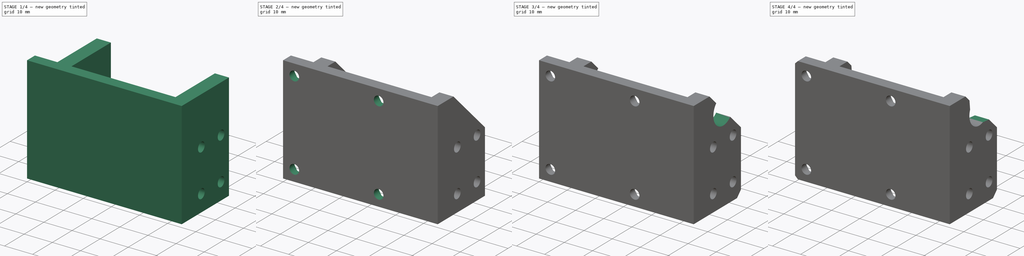
[diagram: build sequence overview — one tinted view per stage of 4, left to right]
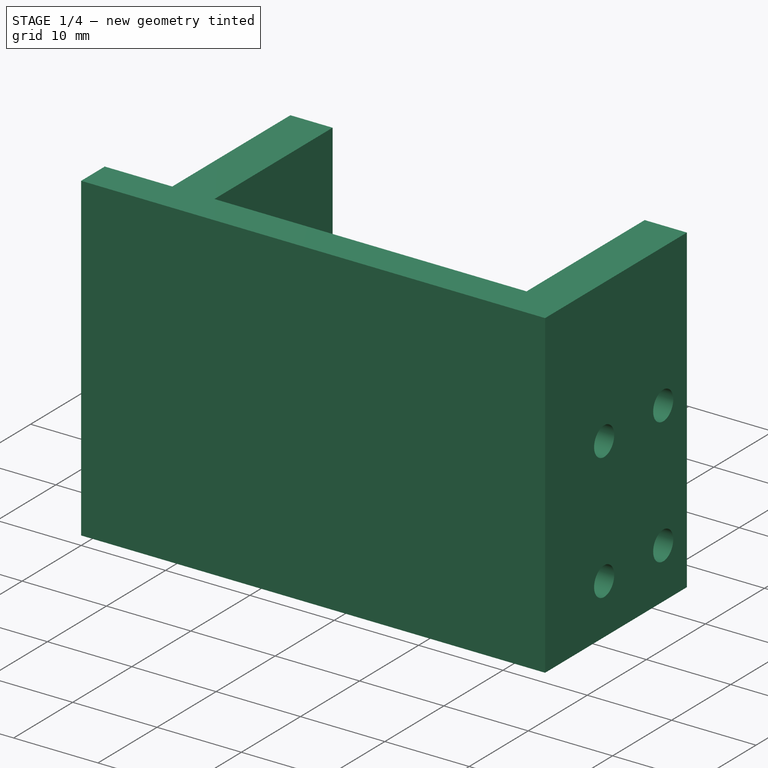
[diagram: stage 1 of 4 — iso view after this stage's code; geometry added in this stage tinted green]
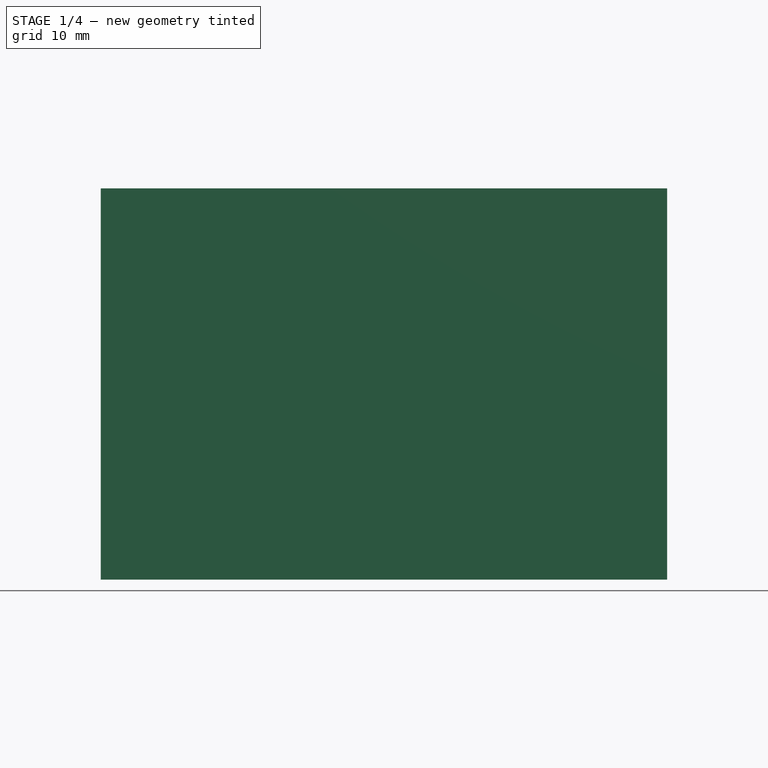
[diagram: stage 1 of 4 — front view after this stage's code; geometry added in this stage tinted green]
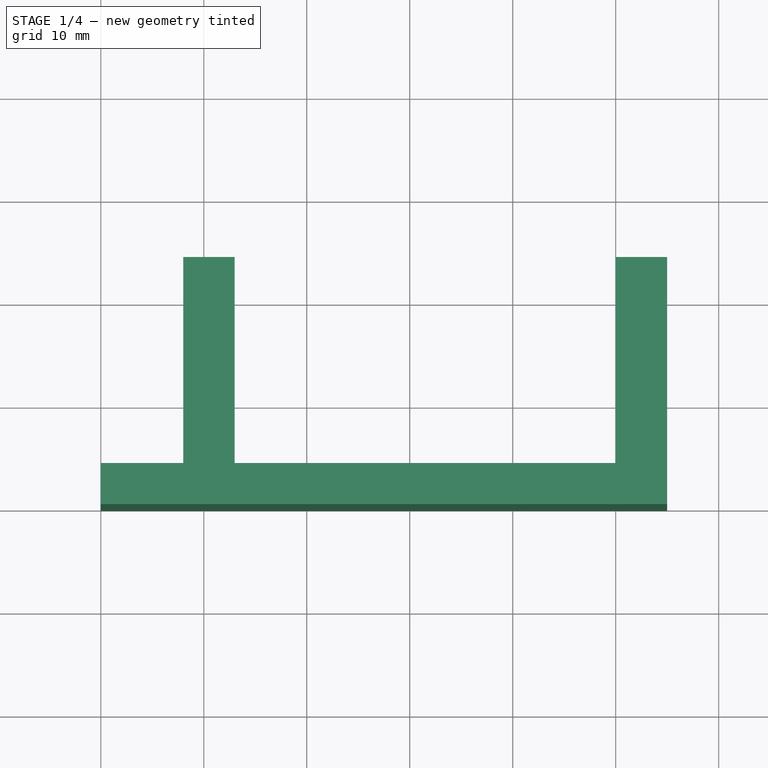
[diagram: stage 1 of 4 — top view after this stage's code; geometry added in this stage tinted green]
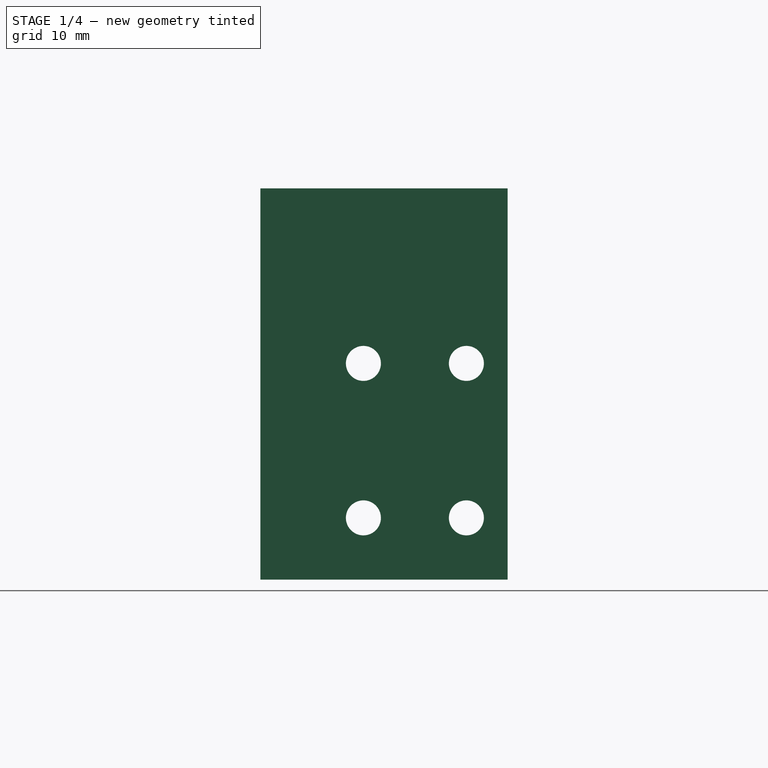
[diagram: stage 1 of 4 — right view after this stage's code; geometry added in this stage tinted green]
FCSTD DOCUMENT  (FreeCAD 0.19R24291 (Git))
Label: FDM-0042_valve-mount
License: All rights reserved
LicenseURL: http://en.wikipedia.org/wiki/All_rights_reserved
objects: Sketcher::SketchObject×5, PartDesign::Chamfer×4, PartDesign::Pocket×3, PartDesign::Plane×3, PartDesign::Hole×2, PartDesign::Pad×1, Part::Part2DObjectPython×1, PartDesign::Body×1
note: 30 computed .brp shape members not serialized (recipe doc carries the construction recipe); baked Part::Feature solids carry a one-line shape summary decoded from their .brp

FEATURE [Sketcher::SketchObject] Sketch  label="Base"
  FullyConstrained = true
  MapMode = 5
  Support = -> [XY_Plane]
  sketch-geometry (10):
    g0: LineSegment StartX=8 StartY=24 StartZ=0 EndX=13 EndY=24 EndZ=0
    g1: LineSegment StartX=13 StartY=24 StartZ=0 EndX=13 EndY=4 EndZ=0
    g2: LineSegment StartX=13 StartY=4 StartZ=0 EndX=50 EndY=4 EndZ=0
    g3: LineSegment StartX=50 StartY=4 StartZ=0 EndX=50 EndY=24 EndZ=0
    g4: LineSegment StartX=50 StartY=24 StartZ=0 EndX=55 EndY=24 EndZ=0
    g5: LineSegment StartX=55 StartY=24 StartZ=0 EndX=55 EndY=0 EndZ=0
    g6: LineSegment StartX=8 StartY=24 StartZ=0 EndX=8 EndY=4 EndZ=0
    g7: LineSegment StartX=8 StartY=4 StartZ=0 EndX=0 EndY=4 EndZ=0
    g8: LineSegment StartX=0 StartY=4 StartZ=0 EndX=0 EndY=0 EndZ=0
    g9: LineSegment StartX=0 StartY=0 StartZ=0 EndX=55 EndY=0 EndZ=0
  constraints (29):
    c: Vertical(g8)
    c: Coincident(g8,g9)
    c: Coincident(g8,g-1)
    c: Coincident(g7,g8)
    c: Coincident(g7,g6)
    c: Coincident(g6,g0)
    c: Coincident(g0,g1)
    c: Coincident(g2,g3)
    c: Coincident(g3,g4)
    c: Horizontal(g9)
    c: Coincident(g5,g9)
    c: Horizontal(g2)
    c: Horizontal(g7)
    c: Horizontal(g0)
    c: Horizontal(g4)
    c: Coincident(g5,g4)
    c: Vertical(g5)
    c: Vertical(g3)
    c: Vertical(g6)
    c: Vertical(g1)
    c: DistanceY(g8,g8) = 4
    c: Coincident(g1,g2)
    c: Horizontal(g1,g6)
    c: Equal(g0,g4)
    c: DistanceX(g4,g4) = 5
    c: DistanceX(g2,g2) = 37
    c: DistanceX(g9,g9) = 55
    c: DistanceY(g1,g1) = 20
    c: Horizontal(g0,g3)
FEATURE [PartDesign::Pad] Pad
  Direction = (1,1,1)
  Length = 38
  Length2 = 100
  Profile = -> Sketch
  Type = 0
FEATURE [Sketcher::SketchObject] Sketch001
  FullyConstrained = true
  MapMode = 5
  Placement = pos=(0,0,0) rot=(0.57735,0.57735,0.57735;2.0944rad)
  Support = -> [YZ_Plane]
  sketch-geometry (4):
    g0: Circle CenterX=10 CenterY=21 CenterZ=0 NormalX=0 NormalY=0 NormalZ=1 AngleXU=0 Radius=1.75
    g1: Circle CenterX=20 CenterY=6 CenterZ=0 NormalX=0 NormalY=0 NormalZ=1 AngleXU=0 Radius=1.75
    g2: Circle CenterX=20 CenterY=21 CenterZ=0 NormalX=0 NormalY=0 NormalZ=1 AngleXU=0 Radius=1.75
    g3: Circle CenterX=10 CenterY=6 CenterZ=0 NormalX=0 NormalY=0 NormalZ=1 AngleXU=0 Radius=1.75
  constraints (12):
    c: Equal(g1,g0)
    c: Diameter(g1) = 3.5
    c: DistanceX(g0,g1) = 10
    c: DistanceY(g1,g0) = 15
    c: DistanceY(g-1,g1) = 6
    c: DistanceX(g-1,g0) = 10
    c: Equal(g3,g2)
    c: Equal(g2,g0)
    c: Horizontal(g0,g2)
    c: Vertical(g2,g1)
    c: Vertical(g3,g0)
    c: Horizontal(g3,g1)
FEATURE [PartDesign::Hole] Hole
  BaseFeature = -> Pad
  Depth = 25
  DepthType = 1
  Diameter = 3.4
  DrillForDepth = false
  DrillPoint = 1
  DrillPointAngle = 118
  HoleCutCountersinkAngle = 90
  HoleCutCustomValues = false
  HoleCutDepth = 0
  HoleCutDiameter = 6.1
  HoleCutType = 0
  ModelActualThread = false
  Profile = -> Sketch001
  Reversed = true
  Tapered = false
  TaperedAngle = 90
  ThreadAngle = 0
  ThreadClass = 0
  ThreadCutOffInner = 0
  ThreadCutOffOuter = 0
  ThreadDirection = 0
  ThreadFit = 0
  ThreadPitch = 0
  ThreadSize = 9
  ThreadType = 1
  Threaded = false
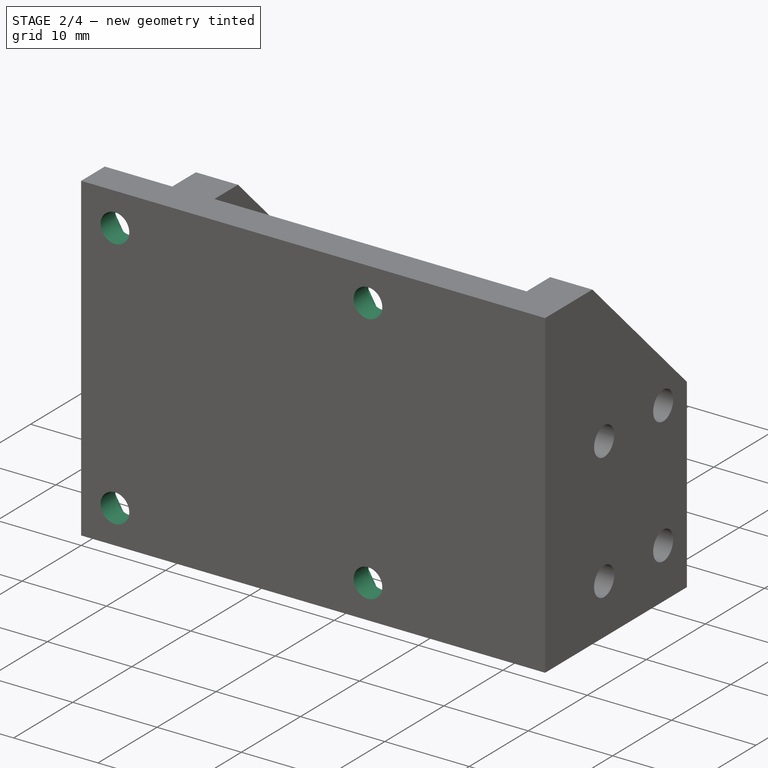
[diagram: stage 2 of 4 — iso view after this stage's code; geometry added in this stage tinted green]
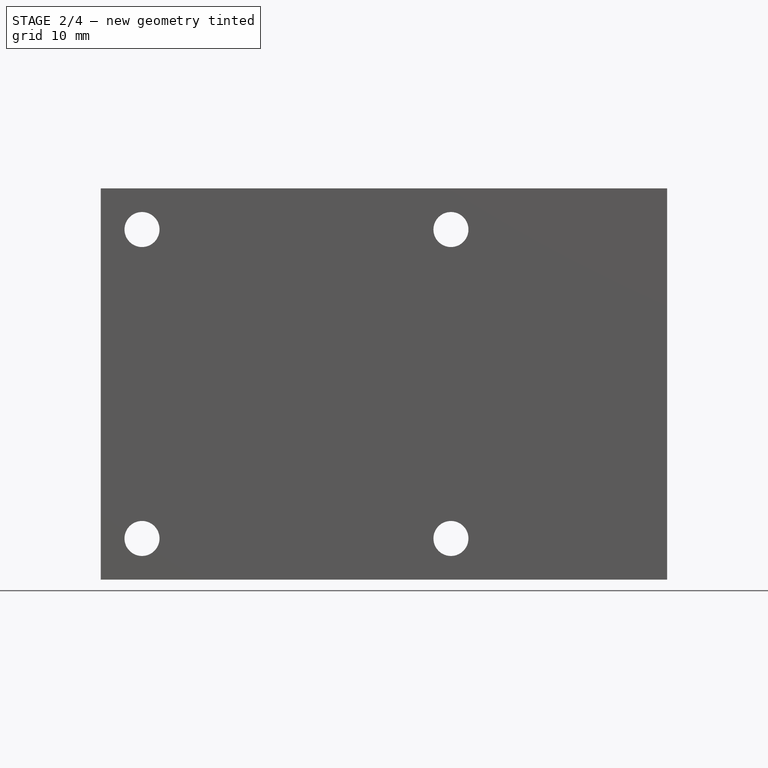
[diagram: stage 2 of 4 — front view after this stage's code; geometry added in this stage tinted green]
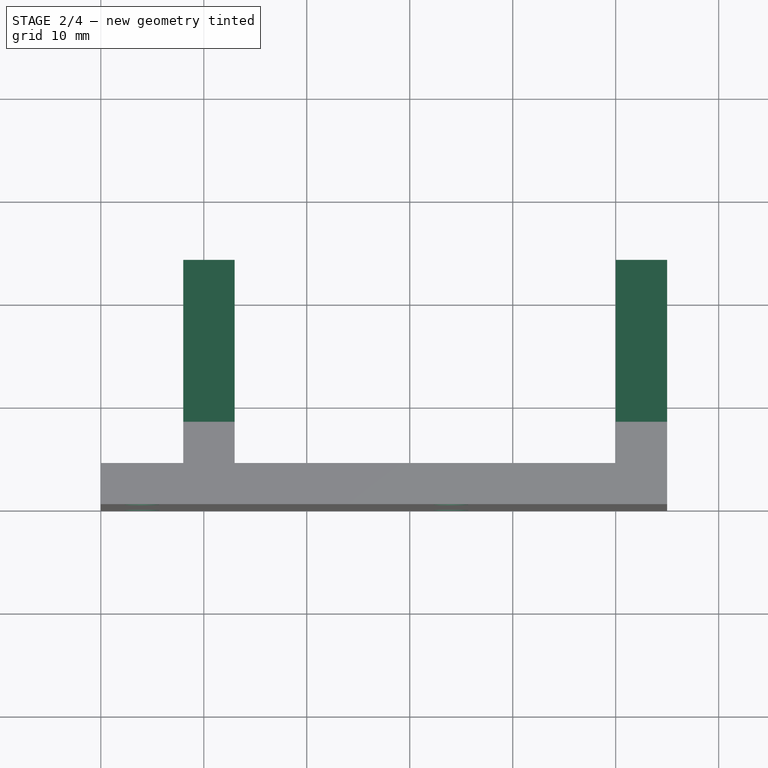
[diagram: stage 2 of 4 — top view after this stage's code; geometry added in this stage tinted green]
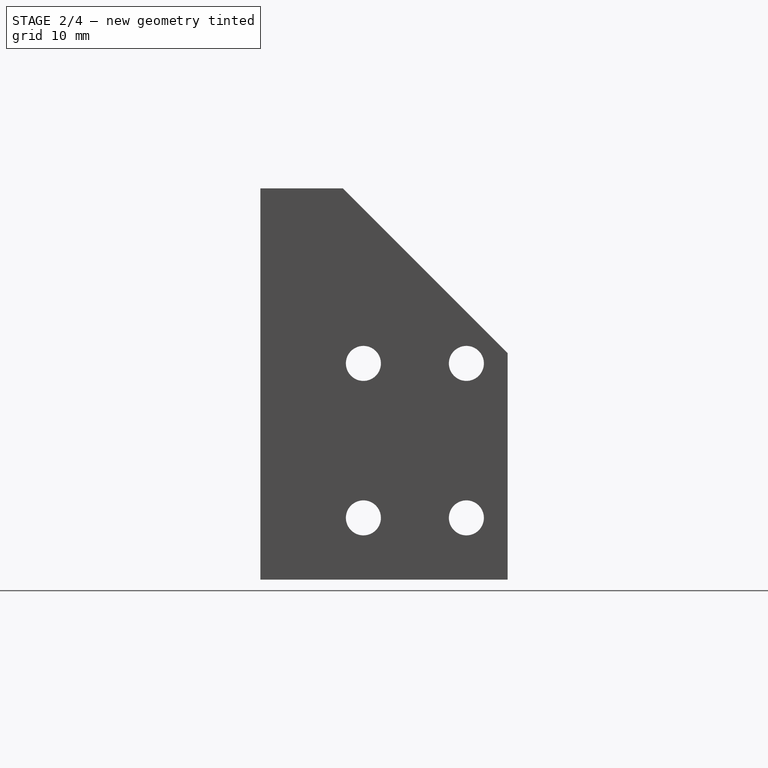
[diagram: stage 2 of 4 — right view after this stage's code; geometry added in this stage tinted green]
FEATURE [Sketcher::SketchObject] Sketch002  label="BaseHoles"
  FullyConstrained = false
  MapMode = 5
  Placement = pos=(0,0,0) rot=(1,0,0;1.5708rad)
  Support = -> [XZ_Plane]
  sketch-geometry (4):
    g0: Circle CenterX=4 CenterY=34 CenterZ=0 NormalX=0 NormalY=0 NormalZ=1 AngleXU=0 Radius=1.75
    g1: Circle CenterX=34 CenterY=4 CenterZ=0 NormalX=0 NormalY=0 NormalZ=1 AngleXU=0 Radius=1.75
    g2: Circle CenterX=34 CenterY=34 CenterZ=0 NormalX=0 NormalY=0 NormalZ=1 AngleXU=0 Radius=1.75
    g3: Circle CenterX=4 CenterY=4 CenterZ=0 NormalX=0 NormalY=0 NormalZ=1 AngleXU=0 Radius=1.75
  constraints (11):
    c: Diameter(g3) = 3.5
    c: Equal(g3,g0)
    c: Equal(g0,g2)
    c: Equal(g2,g1)
    c: DistanceX(g-1,g0) = 4
    c: DistanceY(g-1,g3) = 4
    c: Vertical(g3,g0)
    c: DistanceY(g3,g0) = 30
    c: DistanceX(g0,g2) = 30
    c: Vertical(g1,g2)
    c: Horizontal(g1,g3)
FEATURE [PartDesign::Hole] Hole001
  BaseFeature = -> Hole
  Depth = 25
  DepthType = 0
  Diameter = 3.4
  DrillForDepth = false
  DrillPoint = 1
  DrillPointAngle = 118
  HoleCutCountersinkAngle = 90
  HoleCutCustomValues = false
  HoleCutDepth = 0
  HoleCutDiameter = 6.1
  HoleCutType = 0
  ModelActualThread = false
  Profile = -> Sketch002
  Tapered = false
  TaperedAngle = 90
  ThreadAngle = 0
  ThreadClass = 0
  ThreadCutOffInner = 0
  ThreadCutOffOuter = 0
  ThreadDirection = 0
  ThreadFit = 0
  ThreadPitch = 0
  ThreadSize = 9
  ThreadType = 1
  Threaded = false
FEATURE [Sketcher::SketchObject] Sketch003
  AttachmentOffset = pos=(0,0,-5) rot=(0,0,1;0rad)
  FullyConstrained = true
  MapMode = 5
  Placement = pos=(0,5,1.1e-15) rot=(1,0,0;1.5708rad)
  Support = -> [XZ_Plane]
  sketch-geometry (28):
    g0: LineSegment StartX=7.17543 StartY=34 StartZ=0 EndX=5.58771 EndY=36.75 EndZ=0
    g1: LineSegment StartX=5.58771 StartY=36.75 StartZ=0 EndX=2.41229 EndY=36.75 EndZ=0
    g2: LineSegment StartX=2.41229 StartY=36.75 StartZ=0 EndX=0.824574 EndY=34 EndZ=0
    g3: LineSegment StartX=0.824574 StartY=34 StartZ=0 EndX=2.41229 EndY=31.25 EndZ=0
    g4: LineSegment StartX=2.41229 StartY=31.25 StartZ=0 EndX=5.58771 EndY=31.25 EndZ=0
    g5: LineSegment StartX=5.58771 StartY=31.25 StartZ=0 EndX=7.17543 EndY=34 EndZ=0
    g6: Circle CenterX=4 CenterY=34 CenterZ=0 NormalX=0 NormalY=0 NormalZ=1 AngleXU=0 Radius=3.17543
    g7: LineSegment StartX=35.5877 StartY=31.25 StartZ=0 EndX=37.1754 EndY=34 EndZ=0
    g8: LineSegment StartX=37.1754 StartY=34 StartZ=0 EndX=35.5877 EndY=36.75 EndZ=0
    g9: LineSegment StartX=35.5877 StartY=36.75 StartZ=0 EndX=32.4123 EndY=36.75 EndZ=0
    g10: LineSegment StartX=32.4123 StartY=36.75 StartZ=0 EndX=30.8246 EndY=34 EndZ=0
    g11: LineSegment StartX=30.8246 StartY=34 StartZ=0 EndX=32.4123 EndY=31.25 EndZ=0
    g12: LineSegment StartX=32.4123 StartY=31.25 StartZ=0 EndX=35.5877 EndY=31.25 EndZ=0
    g13: Circle CenterX=34 CenterY=34 CenterZ=0 NormalX=0 NormalY=0 NormalZ=1 AngleXU=0 Radius=3.17543
    g14: LineSegment StartX=35.5877 StartY=6.75 StartZ=0 EndX=32.4123 EndY=6.75 EndZ=0
    g15: LineSegment StartX=32.4123 StartY=6.75 StartZ=0 EndX=30.8246 EndY=4 EndZ=0
    g16: LineSegment StartX=30.8246 StartY=4 StartZ=0 EndX=32.4123 EndY=1.25 EndZ=0
    g17: LineSegment StartX=32.4123 StartY=1.25 StartZ=0 EndX=35.5877 EndY=1.25 EndZ=0
    g18: LineSegment StartX=35.5877 StartY=1.25 StartZ=0 EndX=37.1754 EndY=4 EndZ=0
    g19: LineSegment StartX=37.1754 StartY=4 StartZ=0 EndX=35.5877 EndY=6.75 EndZ=0
    g20: Circle CenterX=34 CenterY=4 CenterZ=0 NormalX=0 NormalY=0 NormalZ=1 AngleXU=0 Radius=3.17543
    g21: LineSegment StartX=7.17543 StartY=4 StartZ=0 EndX=5.58771 EndY=6.75 EndZ=0
    g22: LineSegment StartX=5.58771 StartY=6.75 StartZ=0 EndX=2.41229 EndY=6.75 EndZ=0
    g23: LineSegment StartX=2.41229 StartY=6.75 StartZ=0 EndX=0.824574 EndY=4 EndZ=0
    g24: LineSegment StartX=0.824574 StartY=4 StartZ=0 EndX=2.41229 EndY=1.25 EndZ=0
    g25: LineSegment StartX=2.41229 StartY=1.25 StartZ=0 EndX=5.58771 EndY=1.25 EndZ=0
    g26: LineSegment StartX=5.58771 StartY=1.25 StartZ=0 EndX=7.17543 EndY=4 EndZ=0
    g27: Circle CenterX=4 CenterY=4 CenterZ=0 NormalX=0 NormalY=0 NormalZ=1 AngleXU=0 Radius=3.17543
  constraints (68):
    c: Coincident(g0,g1)
    c: Coincident(g1,g2)
    c: Coincident(g2,g3)
    c: Coincident(g3,g4)
    c: Coincident(g4,g5)
    c: Coincident(g5,g0)
    c: Equal(g0, g1-g5) x5
    c: PointOnObject(g0,g6)
    c: PointOnObject(g1,g6)
    c: PointOnObject(g2,g6)
    c: PointOnObject(g3,g6)
    c: PointOnObject(g4,g6)
    c: PointOnObject(g5,g6)
    c: Coincident(g7,g8)
    c: Coincident(g8,g9)
    c: Coincident(g9,g10)
    c: Coincident(g10,g11)
    c: Coincident(g11,g12)
    c: Coincident(g12,g7)
    c: Equal(g7, g8-g12) x5
    c: PointOnObject(g7,g13)
    c: PointOnObject(g8,g13)
    c: PointOnObject(g9,g13)
    c: PointOnObject(g10,g13)
    c: PointOnObject(g11,g13)
    c: PointOnObject(g12,g13)
    c: Coincident(g14,g15)
    c: Coincident(g15,g16)
    c: Coincident(g16,g17)
    c: Coincident(g17,g18)
    c: Coincident(g18,g19)
    c: Coincident(g19,g14)
    c: Equal(g14, g15-g19) x5
    c: PointOnObject(g14,g20)
    c: PointOnObject(g15,g20)
    c: PointOnObject(g16,g20)
    c: PointOnObject(g17,g20)
    c: PointOnObject(g18,g20)
    c: PointOnObject(g19,g20)
    c: Coincident(g21,g22)
    c: Coincident(g22,g23)
    c: Coincident(g23,g24)
    c: Coincident(g24,g25)
    c: Coincident(g25,g26)
    c: Coincident(g26,g21)
    c: Equal(g21, g22-g26) x5
    c: PointOnObject(g21,g27)
    c: PointOnObject(g22,g27)
    c: PointOnObject(g23,g27)
    c: PointOnObject(g24,g27)
    c: PointOnObject(g25,g27)
    c: PointOnObject(g26,g27)
    c: Distance(g2,g0) = 5.5
    c: Horizontal(g1)
    c: Horizontal(g9)
    c: Horizontal(g22)
    c: Horizontal(g14)
    c: DistanceX(g6,g13) = 30
    c: Vertical(g6,g27)
    c: Vertical(g13,g20)
    c: Horizontal(g27,g20)
    c: Equal(g20,g27)
    c: Equal(g27,g6)
    c: Equal(g6,g13)
    c: DistanceY(g27,g6) = 30
    c: Horizontal(g13,g6)
    c: DistanceY(g-1,g27) = 4
    c: DistanceX(g-1,g27) = 4
FEATURE [PartDesign::Pocket] Pocket
  BaseFeature = -> Hole001
  Length = 2.5
  Length2 = 100
  Profile = -> Sketch003
  Reversed = true
  Type = 0
FEATURE [PartDesign::Chamfer] Chamfer
  Angle = 45
  Base = -> Pocket [Edge4,Edge28]
  BaseFeature = -> Pocket
  ChamferType = 0
  FlipDirection = false
  Size = 16
  Size2 = 1
  SupportTransform = false
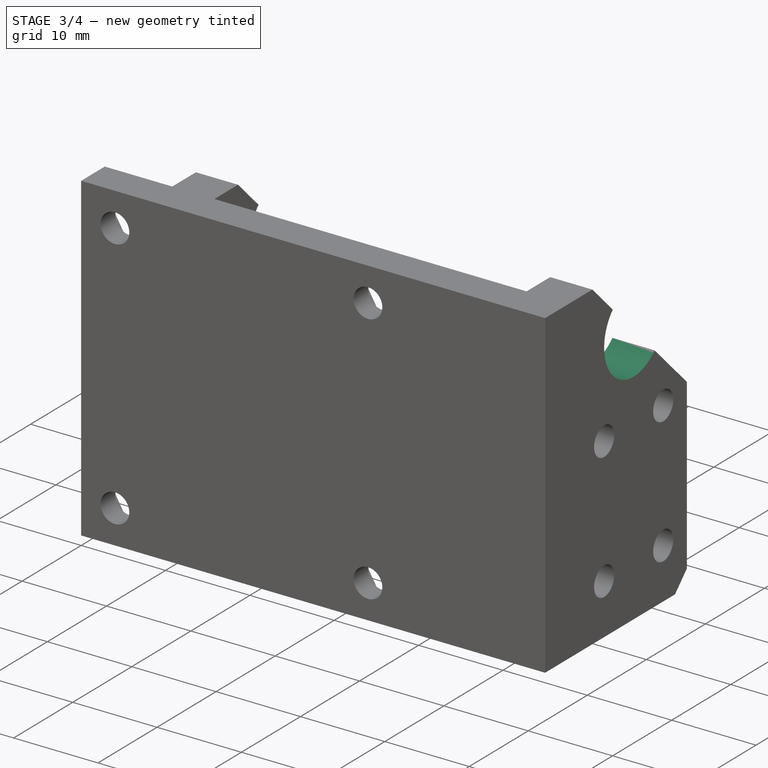
[diagram: stage 3 of 4 — iso view after this stage's code; geometry added in this stage tinted green]
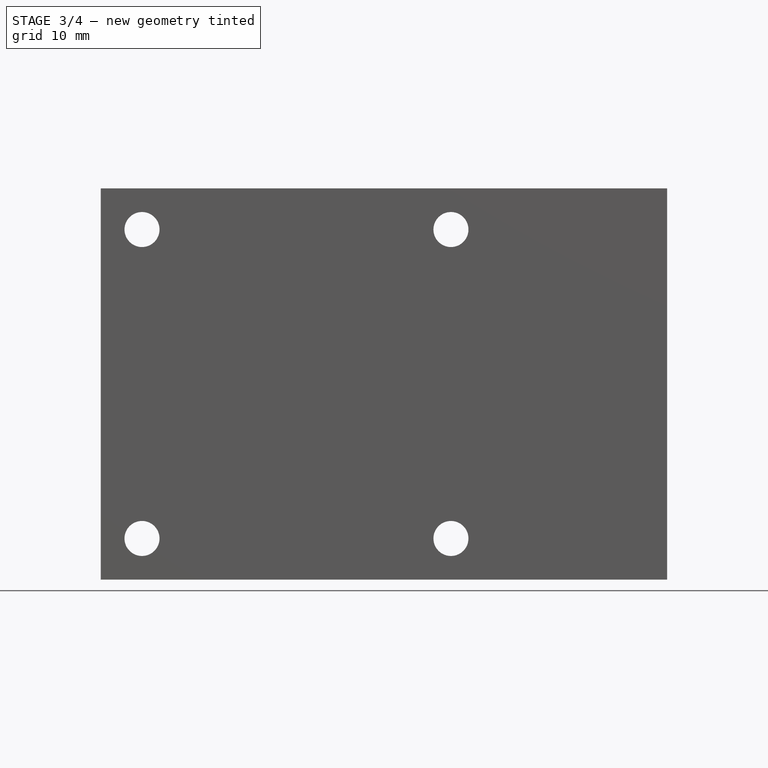
[diagram: stage 3 of 4 — front view after this stage's code; geometry added in this stage tinted green]
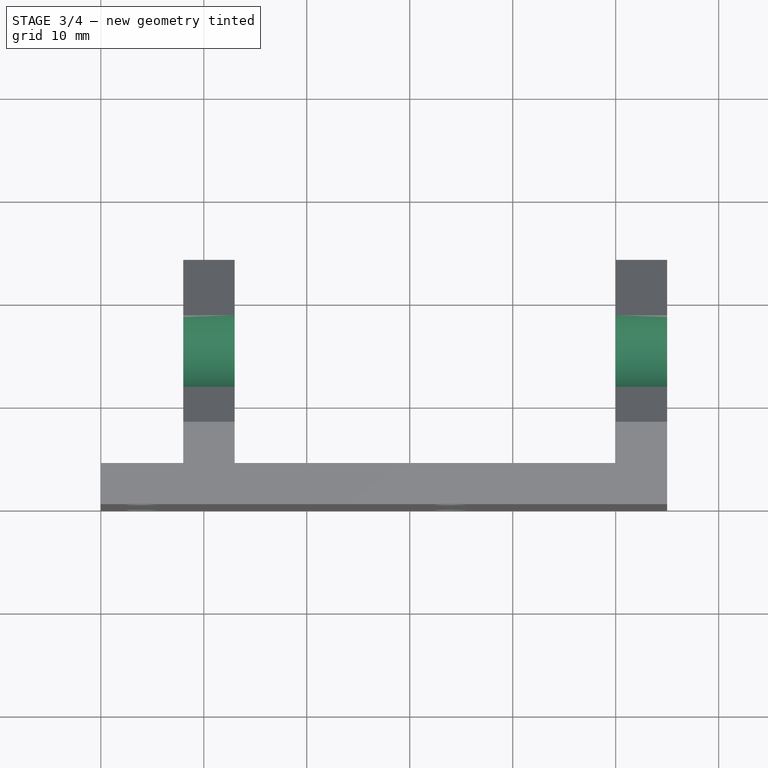
[diagram: stage 3 of 4 — top view after this stage's code; geometry added in this stage tinted green]
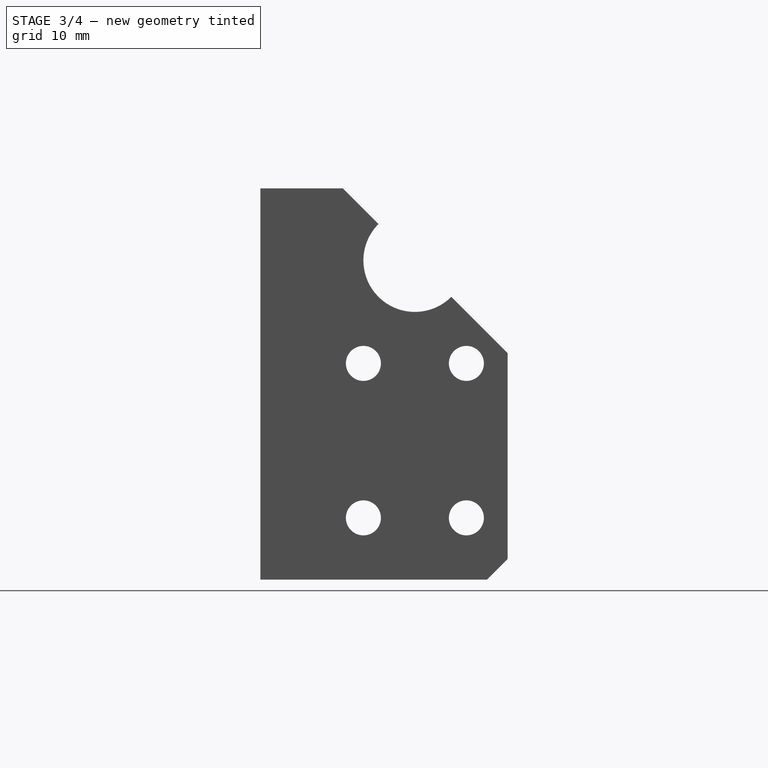
[diagram: stage 3 of 4 — right view after this stage's code; geometry added in this stage tinted green]
FEATURE [PartDesign::Chamfer] Chamfer002
  Angle = 45
  Base = -> Chamfer [Edge18,Edge3]
  BaseFeature = -> Chamfer
  ChamferType = 0
  FlipDirection = false
  Size = 2
  Size2 = 1
  SupportTransform = false
FEATURE [PartDesign::Plane] DatumPlane001
  Length = 94.1986
  MapMode = 5
  Placement = pos=(0,4,0) rot=(0,0.707107,0.707107;3.14159rad)
  ResizeMode = 0
  Support = -> [Chamfer002]
  Width = 77.1986
FEATURE [Part::Part2DObjectPython] ShapeString  label="PN"  # Draft 2D object (typed FeaturePython)
  AttachmentOffset = pos=(-24,2,0) rot=(0,0,1;1.5708rad)
  FontFile = ../../lib/fonts/RobotoMono-VariableFont_weight.ttf
  MapMode = 5
  Placement = pos=(24,4,2) rot=(0.57735,0.57735,0.57735;4.18879rad)
  Size = 4.5
  String = FDM-0042-01
  Support = -> [DatumPlane001]
  Tracking = 0
FEATURE [PartDesign::Pocket] Pocket001  label="PartNumber"
  BaseFeature = -> Chamfer002
  Length = 0.8
  Length2 = 100
  Profile = -> ShapeString
  Type = 0
FEATURE [PartDesign::Plane] DatumPlane002
  Length = 61.225
  MapMode = 5
  Placement = pos=(55,0,0) rot=(0.57735,0.57735,0.57735;2.0944rad)
  ResizeMode = 0
  Support = -> [Pocket001]
  Width = 74.225
FEATURE [Sketcher::SketchObject] Sketch004
  FullyConstrained = true
  MapMode = 5
  Placement = pos=(55,0,0) rot=(0.57735,0.57735,0.57735;2.0944rad)
  Support = -> [DatumPlane002]
  sketch-geometry (1):
    g0: Circle CenterX=15 CenterY=31 CenterZ=0 NormalX=0 NormalY=0 NormalZ=1 AngleXU=0 Radius=5
  constraints (3):
    c: Distance(g0,g-2) = 15
    c: Distance(g0,g-1) = 31
    c: Diameter(g0) = 10
FEATURE [PartDesign::Pocket] Pocket002
  BaseFeature = -> Pocket001
  Length = 60
  Length2 = 100
  Profile = -> Sketch004
  Type = 0
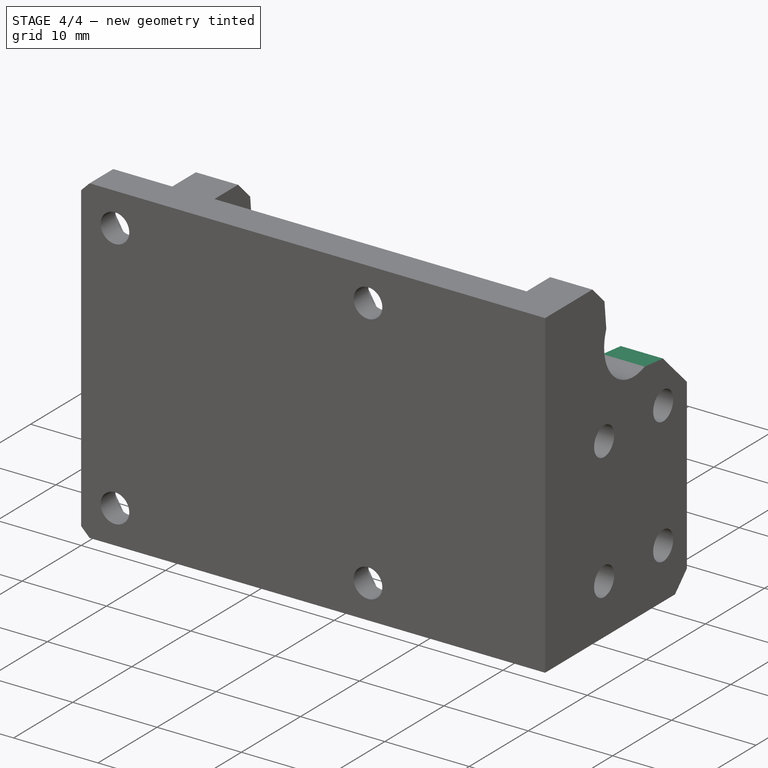
[diagram: stage 4 of 4 — iso view after this stage's code; geometry added in this stage tinted green]
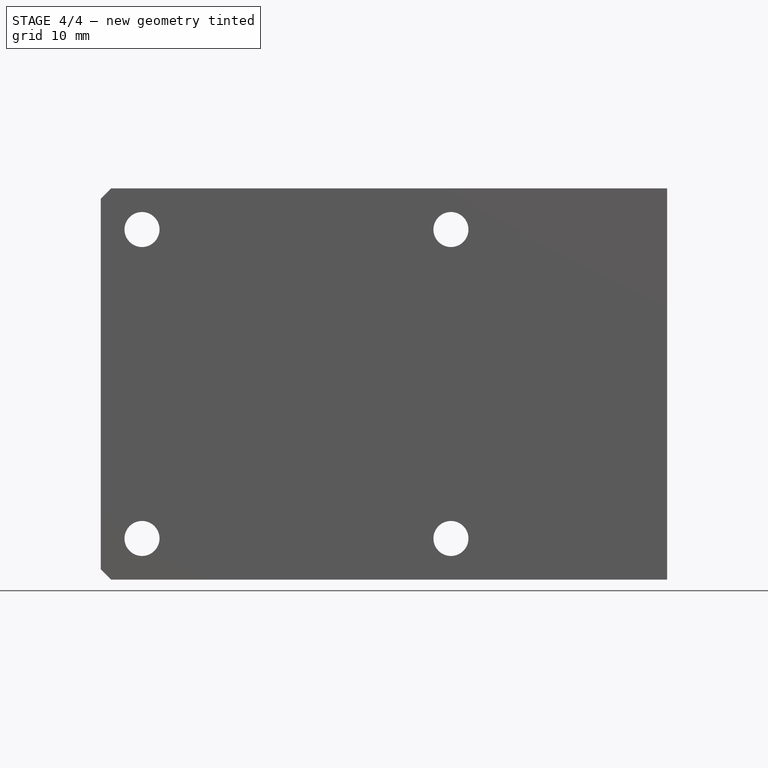
[diagram: stage 4 of 4 — front view after this stage's code; geometry added in this stage tinted green]
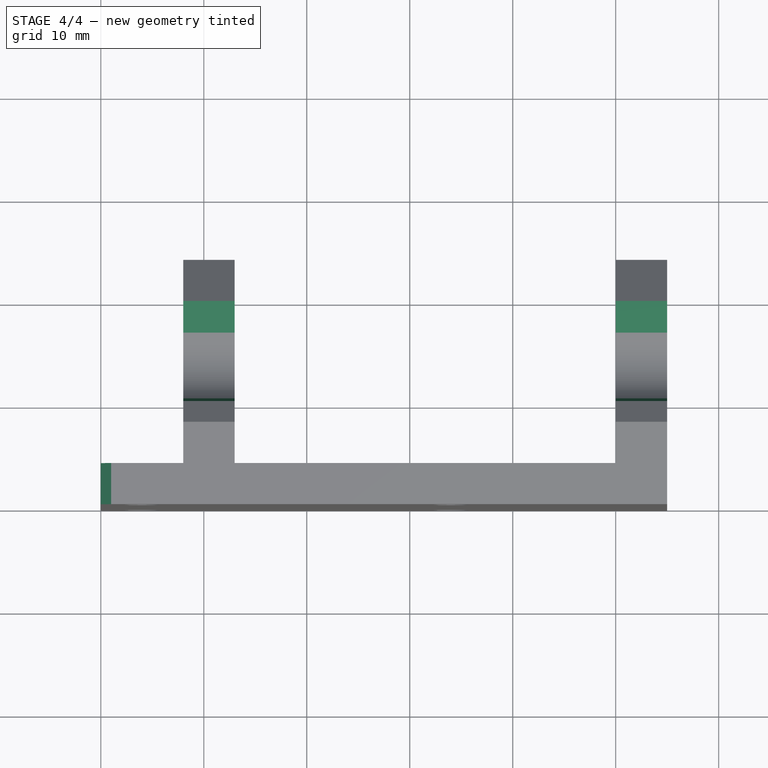
[diagram: stage 4 of 4 — top view after this stage's code; geometry added in this stage tinted green]
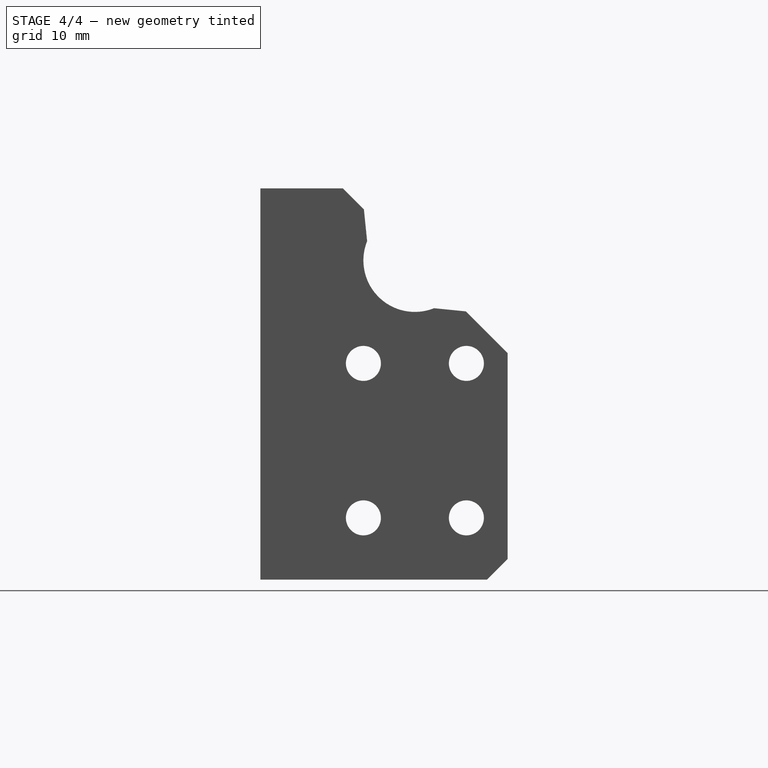
[diagram: stage 4 of 4 — right view after this stage's code; geometry added in this stage tinted green]
FEATURE [PartDesign::Chamfer] Chamfer003
  Angle = 45
  Base = -> Pocket002 [Edge276,Edge57,Edge18,Edge606]
  BaseFeature = -> Pocket002
  ChamferType = 0
  FlipDirection = false
  Size = 2
  Size2 = 1
  SupportTransform = false
FEATURE [PartDesign::Chamfer] Chamfer004
  Angle = 45
  Base = -> Chamfer003 [Edge25,Edge51]
  BaseFeature = -> Chamfer003
  ChamferType = 0
  FlipDirection = false
  Size = 1
  Size2 = 1
  SupportTransform = false
FEATURE [PartDesign::Plane] DatumPlane003  label="PrintPlane"
  Length = 94.1986
  MapMode = 5
  Placement = pos=(0,0,0) rot=(1,0,0;1.5708rad)
  ResizeMode = 0
  Support = -> [Chamfer004]
  Width = 77.1986
FEATURE [PartDesign::Body] Body
  Group = -> [Sketch,Pad,Sketch001,Hole,Sketch002,Hole001,Sketch003,Pocket,Chamfer,Chamfer002,DatumPlane001,ShapeString,Pocket001,DatumPlane002,Sketch004,Pocket002,Chamfer003,Chamfer004,DatumPlane003]
  Origin = -> Origin
  Tip = -> Chamfer004
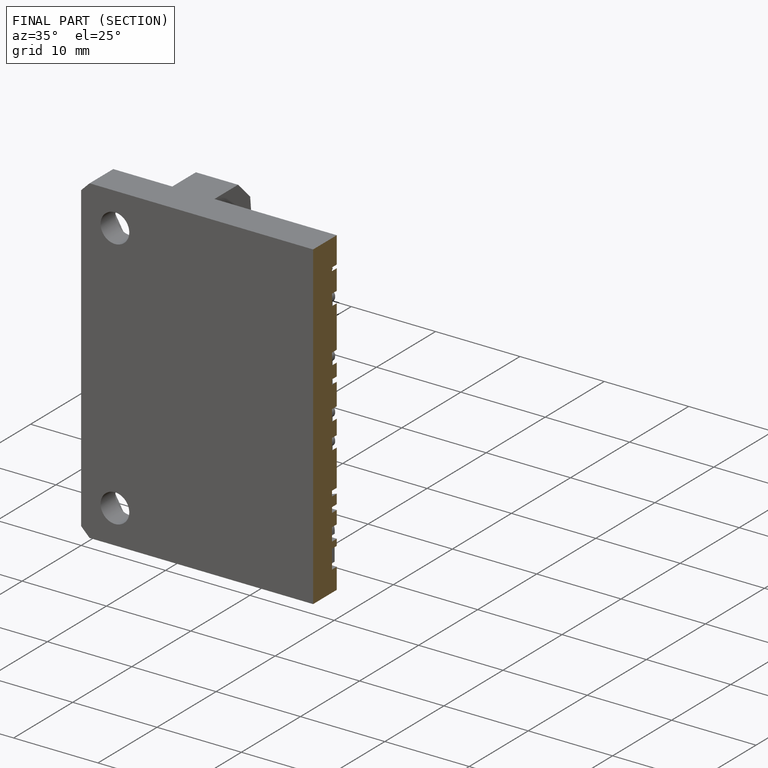
[diagram: finished part — half-section view (interior)]
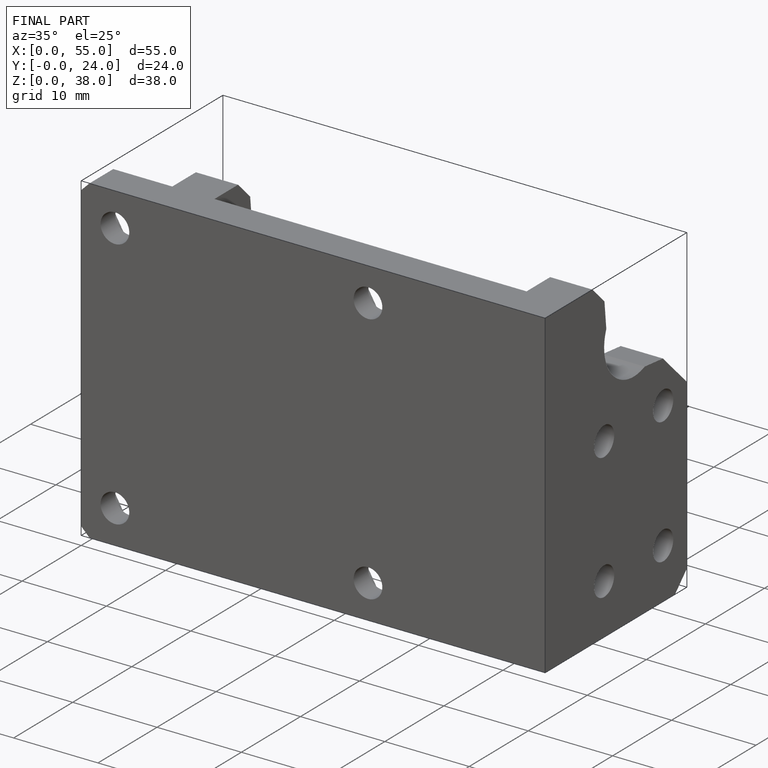
[diagram: finished part — iso view with bounding-box wireframe]
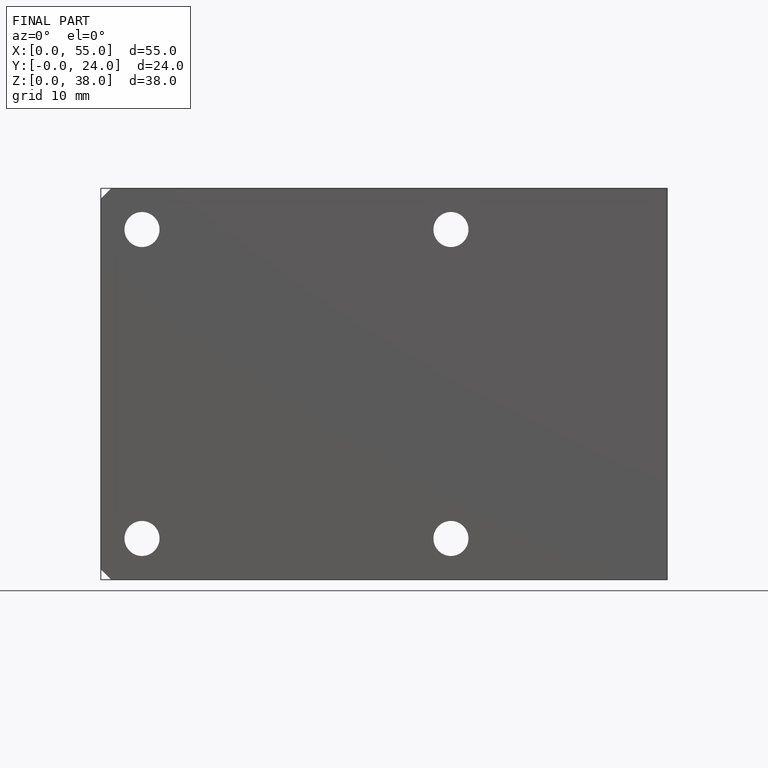
[diagram: finished part — front view with bounding-box wireframe]
